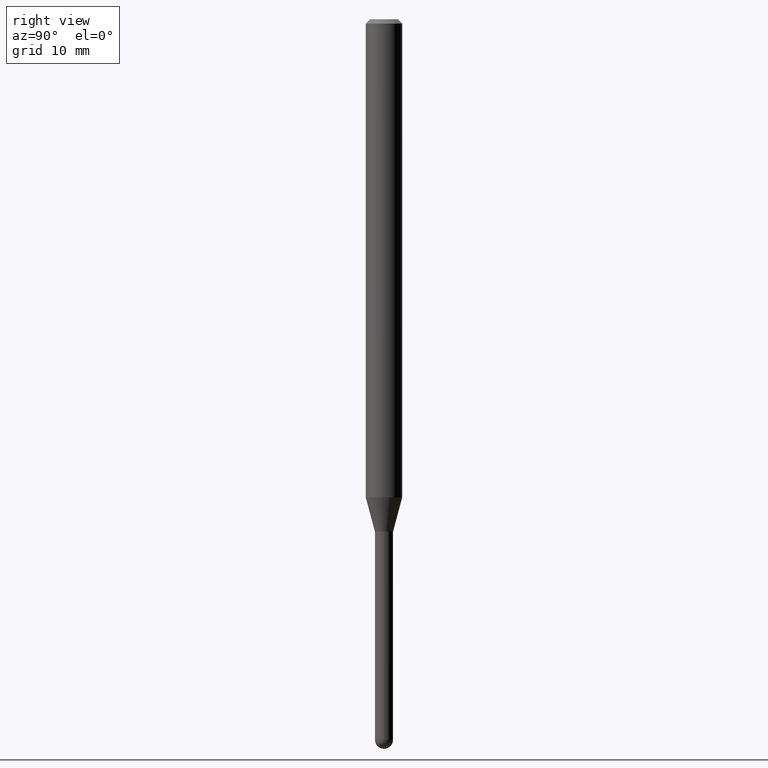
[diagram: clean part render]
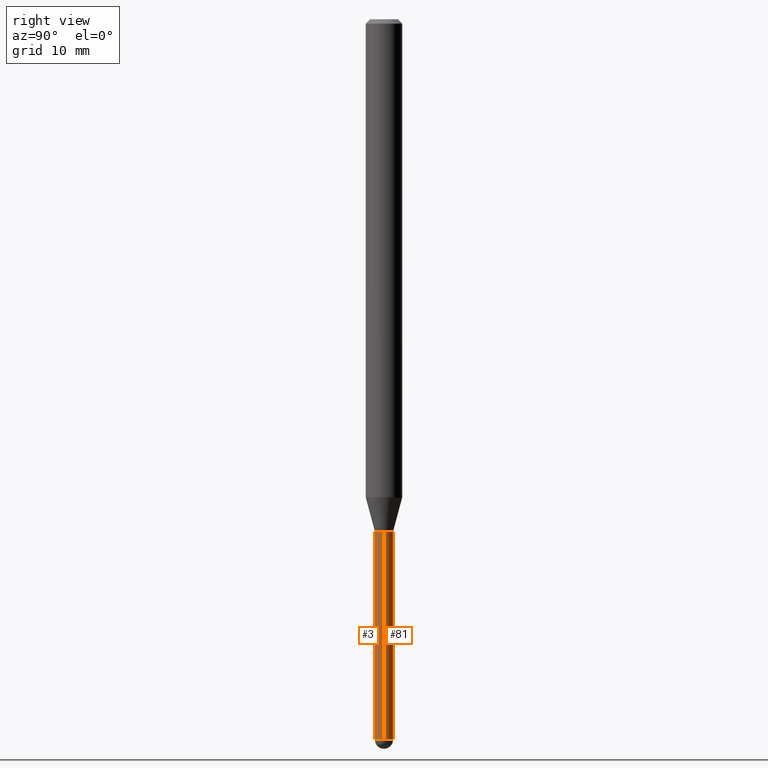
[diagram: same view with one multi-face feature highlighted, each face labeled with its STEP entity id]
A machine part, right view. The highlighted faces form ONE feature: a constant-radius fillet chain: 2 tangent blend faces with common blend radius 0.7874 mm. The faces share edges in the B-rep.
Their STEP definitions:
[1] entity #81 (Cylinder):
#2 = CARTESIAN_POINT ( 'NONE',  ( 0.03099999999999999978, -6.347513074016838623E-15, -1.756000000000000005 ) ) ;
#12 = CARTESIAN_POINT ( 'NONE',  ( -0.03099999999999999978, 2.202682480856310560E-16, -1.524869877979020612E-30 ) ) ;
#14 = CARTESIAN_POINT ( 'NONE',  ( 6.037862482471103495E-29, -8.620467425603728566E-15, -2.469000000000000306 ) ) ;
#25 = VERTEX_POINT ( 'NONE', #439 ) ;
#46 = EDGE_CURVE ( 'NONE', #346, #80, #362, .T. ) ;
#49 = AXIS2_PLACEMENT_3D ( 'NONE', #434, #279, #192 ) ;
#55 = DIRECTION ( 'NONE',  ( 1.000000000000000000, -6.982962677686270655E-15, 0.000000000000000000 ) ) ;
#60 = EDGE_CURVE ( 'NONE', #455, #416, #272, .T. ) ;
#63 = DIRECTION ( 'NONE',  ( 1.000000000000000000, -6.982962677686270655E-15, 0.000000000000000000 ) ) ;
#75 = FACE_OUTER_BOUND ( 'NONE', #115, .T. ) ;
#80 = VERTEX_POINT ( 'NONE', #2 ) ;
#81 = ADVANCED_FACE ( 'NONE', ( #75 ), #161, .T. ) ;
#98 = DIRECTION ( 'NONE',  ( -2.445468806185136597E-29, 3.491481338843145583E-15, 1.000000000000000000 ) ) ;
#102 = DIRECTION ( 'NONE',  ( -2.445468806185136597E-29, 3.491481338843145583E-15, 1.000000000000000000 ) ) ;
#115 = EDGE_LOOP ( 'NONE', ( #491, #507, #189, #334, #144 ) ) ;
#117 = DIRECTION ( 'NONE',  ( -2.445468806185136877E-29, 3.491481338843145188E-15, 1.000000000000000000 ) ) ;
#133 = CARTESIAN_POINT ( 'NONE',  ( -0.03099999999999999978, -7.155486080220514781E-15, -2.469000000000000306 ) ) ;
#144 = ORIENTED_EDGE ( 'NONE', *, *, #412, .T. ) ;
#161 = CYLINDRICAL_SURFACE ( 'NONE', #453, 0.03099999999999999978 ) ;
#168 = VECTOR ( 'NONE', #117, 39.37007874015748143 ) ;
#189 = ORIENTED_EDGE ( 'NONE', *, *, #479, .F. ) ;
#192 = DIRECTION ( 'NONE',  ( 1.000000000000000000, -6.982962677686270655E-15, 0.000000000000000000 ) ) ;
#230 = VECTOR ( 'NONE', #291, 39.37007874015748143 ) ;
#234 = DIRECTION ( 'NONE',  ( -2.445468806185136597E-29, 3.491481338843145583E-15, 1.000000000000000000 ) ) ;
#253 = CARTESIAN_POINT ( 'NONE',  ( 0.03099999999999999978, -7.592226171314421154E-15, -2.469000000000000306 ) ) ;
#268 = CARTESIAN_POINT ( 'NONE',  ( 0.03099999999999999978, -2.164718430082742572E-16, 1.511614800496739984E-30 ) ) ;
#272 = CIRCLE ( 'NONE', #49, 0.03099999999999999978 ) ;
#273 = CARTESIAN_POINT ( 'NONE',  ( 0.000000000000000000, 0.000000000000000000, 0.000000000000000000 ) ) ;
#279 = DIRECTION ( 'NONE',  ( -2.445468806185136597E-29, 3.491481338843145583E-15, 1.000000000000000000 ) ) ;
#291 = DIRECTION ( 'NONE',  ( -2.445468806185136877E-29, 3.491481338843145188E-15, 1.000000000000000000 ) ) ;
#297 = AXIS2_PLACEMENT_3D ( 'NONE', #458, #98, #63 ) ;
#321 = EDGE_CURVE ( 'NONE', #416, #25, #369, .T. ) ;
#334 = ORIENTED_EDGE ( 'NONE', *, *, #46, .F. ) ;
#346 = VERTEX_POINT ( 'NONE', #253 ) ;
#362 = LINE ( 'NONE', #268, #168 ) ;
#369 = LINE ( 'NONE', #12, #230 ) ;
#412 = EDGE_CURVE ( 'NONE', #346, #455, #444, .T. ) ;
#416 = VERTEX_POINT ( 'NONE', #133 ) ;
#418 = CARTESIAN_POINT ( 'NONE',  ( 2.164718430083341860E-16, 0.03099999999999131575, -2.469000000000000306 ) ) ;
#434 = CARTESIAN_POINT ( 'NONE',  ( 6.037862482471103495E-29, -8.620467425603728566E-15, -2.469000000000000306 ) ) ;
#439 = CARTESIAN_POINT ( 'NONE',  ( -0.03099999999999999978, -7.155486080220514781E-15, -1.756000000000000005 ) ) ;
#444 = CIRCLE ( 'NONE', #493, 0.03099999999999999978 ) ;
#453 = AXIS2_PLACEMENT_3D ( 'NONE', #273, #234, #476 ) ;
#455 = VERTEX_POINT ( 'NONE', #418 ) ;
#458 = CARTESIAN_POINT ( 'NONE',  ( 4.294243223661099859E-29, -6.131041231008564292E-15, -1.756000000000000005 ) ) ;
#476 = DIRECTION ( 'NONE',  ( 1.000000000000000000, -6.982962677686266711E-15, 4.876176775795935232E-29 ) ) ;
#479 = EDGE_CURVE ( 'NONE', #80, #25, #484, .T. ) ;
#484 = CIRCLE ( 'NONE', #297, 0.03099999999999999978 ) ;
#491 = ORIENTED_EDGE ( 'NONE', *, *, #60, .T. ) ;
#493 = AXIS2_PLACEMENT_3D ( 'NONE', #14, #102, #55 ) ;
#507 = ORIENTED_EDGE ( 'NONE', *, *, #321, .T. ) ;
[2] entity #3 (Cylinder):
#2 = CARTESIAN_POINT ( 'NONE',  ( 0.03099999999999999978, -6.347513074016838623E-15, -1.756000000000000005 ) ) ;
#3 = ADVANCED_FACE ( 'NONE', ( #134 ), #387, .T. ) ;
#10 = ORIENTED_EDGE ( 'NONE', *, *, #46, .T. ) ;
#11 = CARTESIAN_POINT ( 'NONE',  ( 6.037862482471103495E-29, -8.620467425603728566E-15, -2.469000000000000306 ) ) ;
#12 = CARTESIAN_POINT ( 'NONE',  ( -0.03099999999999999978, 2.202682480856310560E-16, -1.524869877979020612E-30 ) ) ;
#13 = CIRCLE ( 'NONE', #395, 0.03099999999999999978 ) ;
#15 = ORIENTED_EDGE ( 'NONE', *, *, #111, .F. ) ;
#25 = VERTEX_POINT ( 'NONE', #439 ) ;
#31 = CARTESIAN_POINT ( 'NONE',  ( 4.294243223661099859E-29, -6.131041231008564292E-15, -1.756000000000000005 ) ) ;
#46 = EDGE_CURVE ( 'NONE', #346, #80, #362, .T. ) ;
#58 = ORIENTED_EDGE ( 'NONE', *, *, #331, .T. ) ;
#69 = AXIS2_PLACEMENT_3D ( 'NONE', #169, #125, #448 ) ;
#71 = EDGE_LOOP ( 'NONE', ( #495, #58, #302, #10, #15 ) ) ;
#80 = VERTEX_POINT ( 'NONE', #2 ) ;
#86 = DIRECTION ( 'NONE',  ( -2.445468806185136597E-29, 3.491481338843145583E-15, 1.000000000000000000 ) ) ;
#103 = VERTEX_POINT ( 'NONE', #355 ) ;
#111 = EDGE_CURVE ( 'NONE', #25, #80, #473, .T. ) ;
#114 = AXIS2_PLACEMENT_3D ( 'NONE', #31, #505, #204 ) ;
#117 = DIRECTION ( 'NONE',  ( -2.445468806185136877E-29, 3.491481338843145188E-15, 1.000000000000000000 ) ) ;
#125 = DIRECTION ( 'NONE',  ( -2.445468806185136597E-29, 3.491481338843145583E-15, 1.000000000000000000 ) ) ;
#133 = CARTESIAN_POINT ( 'NONE',  ( -0.03099999999999999978, -7.155486080220514781E-15, -2.469000000000000306 ) ) ;
#134 = FACE_OUTER_BOUND ( 'NONE', #71, .T. ) ;
#136 = AXIS2_PLACEMENT_3D ( 'NONE', #232, #322, #475 ) ;
#168 = VECTOR ( 'NONE', #117, 39.37007874015748143 ) ;
#169 = CARTESIAN_POINT ( 'NONE',  ( 6.037862482471103495E-29, -8.620467425603728566E-15, -2.469000000000000306 ) ) ;
#173 = EDGE_CURVE ( 'NONE', #103, #346, #228, .T. ) ;
#204 = DIRECTION ( 'NONE',  ( 1.000000000000000000, -6.982962677686270655E-15, 0.000000000000000000 ) ) ;
#228 = CIRCLE ( 'NONE', #69, 0.03099999999999999978 ) ;
#230 = VECTOR ( 'NONE', #291, 39.37007874015748143 ) ;
#232 = CARTESIAN_POINT ( 'NONE',  ( 0.000000000000000000, 0.000000000000000000, 0.000000000000000000 ) ) ;
#242 = DIRECTION ( 'NONE',  ( 1.000000000000000000, -6.982962677686270655E-15, 0.000000000000000000 ) ) ;
#253 = CARTESIAN_POINT ( 'NONE',  ( 0.03099999999999999978, -7.592226171314421154E-15, -2.469000000000000306 ) ) ;
#268 = CARTESIAN_POINT ( 'NONE',  ( 0.03099999999999999978, -2.164718430082742572E-16, 1.511614800496739984E-30 ) ) ;
#291 = DIRECTION ( 'NONE',  ( -2.445468806185136877E-29, 3.491481338843145188E-15, 1.000000000000000000 ) ) ;
#302 = ORIENTED_EDGE ( 'NONE', *, *, #173, .T. ) ;
#321 = EDGE_CURVE ( 'NONE', #416, #25, #369, .T. ) ;
#322 = DIRECTION ( 'NONE',  ( -2.445468806185136597E-29, 3.491481338843145583E-15, 1.000000000000000000 ) ) ;
#331 = EDGE_CURVE ( 'NONE', #416, #103, #13, .T. ) ;
#346 = VERTEX_POINT ( 'NONE', #253 ) ;
#355 = CARTESIAN_POINT ( 'NONE',  ( -2.202682480855702151E-16, -0.03100000000000856237, -2.469000000000000306 ) ) ;
#362 = LINE ( 'NONE', #268, #168 ) ;
#369 = LINE ( 'NONE', #12, #230 ) ;
#387 = CYLINDRICAL_SURFACE ( 'NONE', #136, 0.03099999999999999978 ) ;
#395 = AXIS2_PLACEMENT_3D ( 'NONE', #11, #86, #242 ) ;
#416 = VERTEX_POINT ( 'NONE', #133 ) ;
#439 = CARTESIAN_POINT ( 'NONE',  ( -0.03099999999999999978, -7.155486080220514781E-15, -1.756000000000000005 ) ) ;
#448 = DIRECTION ( 'NONE',  ( 1.000000000000000000, -6.982962677686270655E-15, 0.000000000000000000 ) ) ;
#473 = CIRCLE ( 'NONE', #114, 0.03099999999999999978 ) ;
#475 = DIRECTION ( 'NONE',  ( 1.000000000000000000, -6.982962677686266711E-15, 4.876176775795935232E-29 ) ) ;
#495 = ORIENTED_EDGE ( 'NONE', *, *, #321, .F. ) ;
#505 = DIRECTION ( 'NONE',  ( -2.445468806185136597E-29, 3.491481338843145583E-15, 1.000000000000000000 ) ) ;